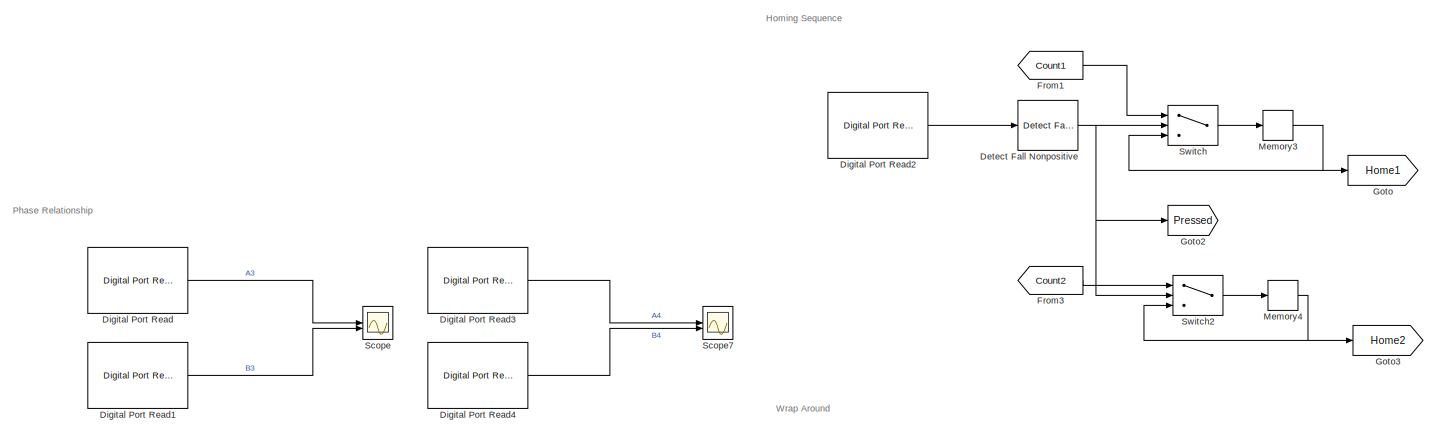
[diagram: root canvas - part 1/2, top left region]
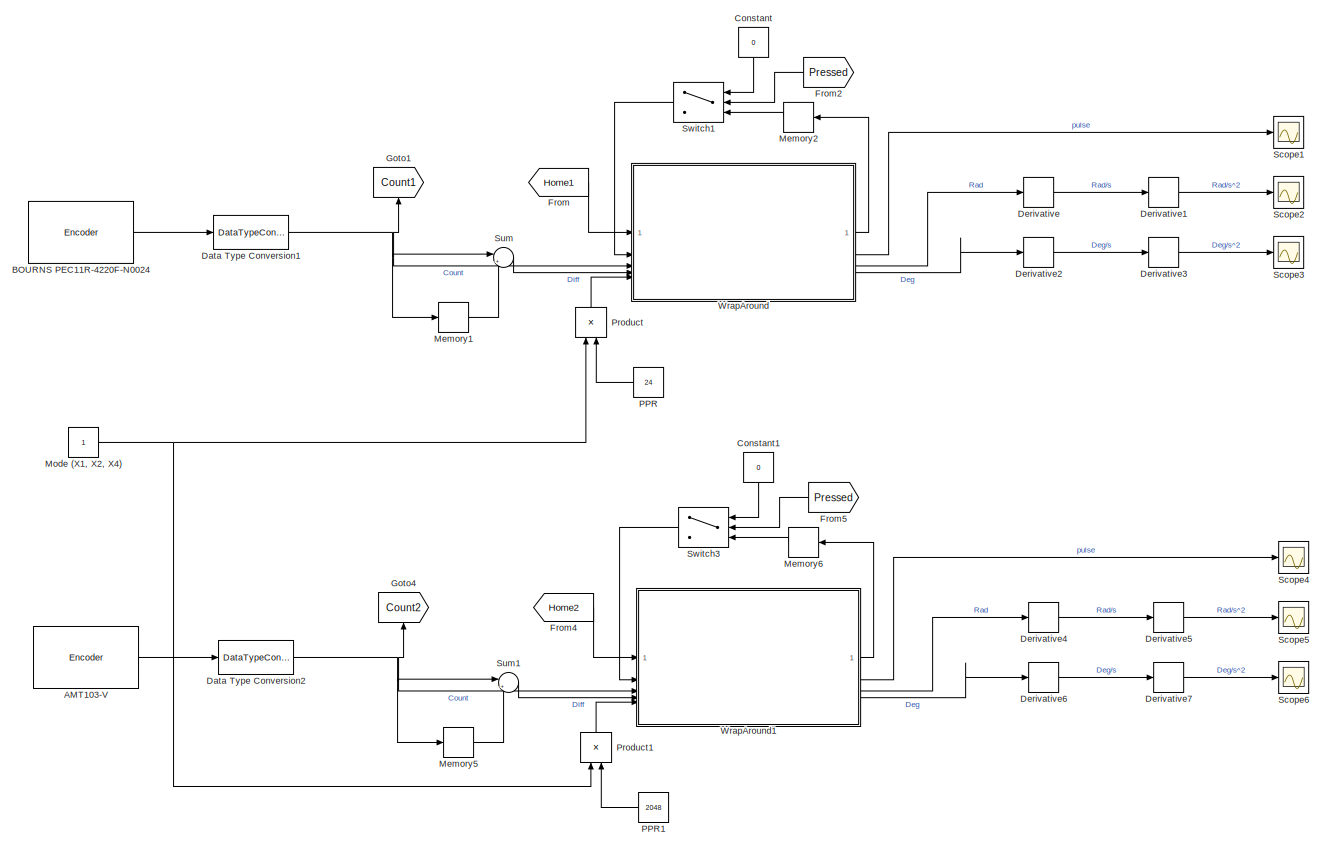
[diagram: root canvas - part 2/2, middle right region]
MODEL slx_5ef16ebb8ba3
KIND model
CONFIG AbsTol = auto
CONFIG EnableMultiTasking = on
CONFIG FixedStep = 0.001
CONFIG MaxStep = auto
CONFIG MinStep = auto
CONFIG RelTol = 1e-3
CONFIG SampleTimeConstraint = Unconstrained
CONFIG SolverName = FixedStepAuto
CONFIG StartTime = 0.0
CONFIG StopTime = inf
BLOCK [Reference] AMT103-V  REF=stm32g4xxblockslib/Encoder
  SourceBlock = stm32g4xxblockslib/Encoder
  SourceType = stm32cube.blocks.EncoderBlockForG4
BLOCK [Reference] BOURNS PEC11R-4220F-N0024  REF=stm32g4xxblockslib/Encoder
  SourceBlock = stm32g4xxblockslib/Encoder
  SourceType = stm32cube.blocks.EncoderBlockForG4
BLOCK [Constant] Constant
  Commented = on
  NameLocation = left
  Value = 0
BLOCK [Constant] Constant1
  Commented = on
  NameLocation = left
  Value = 0
BLOCK [DataTypeConversion] Data Type Conversion1
  Commented = on
  OutDataTypeStr = double
  RndMeth = Floor
  SaturateOnIntegerOverflow = off
BLOCK [DataTypeConversion] Data Type Conversion2
  Commented = on
  OutDataTypeStr = double
  RndMeth = Floor
  SaturateOnIntegerOverflow = off
BLOCK [Derivative] Derivative
  Commented = on
BLOCK [Derivative] Derivative1
  Commented = on
BLOCK [Derivative] Derivative2
  Commented = on
BLOCK [Derivative] Derivative3
  Commented = on
BLOCK [Derivative] Derivative4
  Commented = on
BLOCK [Derivative] Derivative5
  Commented = on
BLOCK [Derivative] Derivative6
  Commented = on
BLOCK [Derivative] Derivative7
  Commented = on
BLOCK [Reference] Detect Fall Nonpositive   REF=simulink/Logic and Bit
Operations/Detect Fall
Nonpositive
  Commented = on
  SourceBlock = simulink/Logic and Bit\nOperations/Detect Fall\nNonpositive
  SourceType = Detect Fall Nonpositive
BLOCK [Reference] Digital Port Read  REF=stm32f4xxblockslib/Digital Port Read
  SourceBlock = stm32f4xxblockslib/Digital Port Read
  SourceType = stm32cube.blocks.DigitalPortRead
BLOCK [Reference] Digital Port Read1  REF=stm32f4xxblockslib/Digital Port Read
  SourceBlock = stm32f4xxblockslib/Digital Port Read
  SourceType = stm32cube.blocks.DigitalPortRead
BLOCK [Reference] Digital Port Read2  REF=stm32f4xxblockslib/Digital Port Read
  Commented = on
  SourceBlock = stm32f4xxblockslib/Digital Port Read
  SourceType = stm32cube.blocks.DigitalPortRead
BLOCK [Reference] Digital Port Read3  REF=stm32f4xxblockslib/Digital Port Read
  SourceBlock = stm32f4xxblockslib/Digital Port Read
  SourceType = stm32cube.blocks.DigitalPortRead
BLOCK [Reference] Digital Port Read4  REF=stm32f4xxblockslib/Digital Port Read
  SourceBlock = stm32f4xxblockslib/Digital Port Read
  SourceType = stm32cube.blocks.DigitalPortRead
BLOCK [From] From
  Commented = on
  GotoTag = Home1
BLOCK [From] From1
  Commented = on
  GotoTag = Count1
BLOCK [From] From2
  Commented = on
  GotoTag = Pressed
  NameLocation = top
BLOCK [From] From3
  Commented = on
  GotoTag = Count2
BLOCK [From] From4
  Commented = on
  GotoTag = Home2
BLOCK [From] From5
  Commented = on
  GotoTag = Pressed
  NameLocation = top
BLOCK [Goto] Goto
  Commented = on
  GotoTag = Home1
BLOCK [Goto] Goto1
  Commented = on
  GotoTag = Count1
  NameLocation = right
BLOCK [Goto] Goto2
  Commented = on
  GotoTag = Pressed
BLOCK [Goto] Goto3
  Commented = on
  GotoTag = Home2
BLOCK [Goto] Goto4
  Commented = on
  GotoTag = Count2
  NameLocation = right
BLOCK [Memory] Memory1
  Commented = on
BLOCK [Memory] Memory2
  Commented = on
  NameLocation = top
BLOCK [Memory] Memory3
  Commented = on
BLOCK [Memory] Memory4
  Commented = on
BLOCK [Memory] Memory5
  Commented = on
BLOCK [Memory] Memory6
  Commented = on
  NameLocation = top
BLOCK [Constant] Mode (X1, X2, X4)
  Commented = on
BLOCK [Constant] PPR
  Commented = on
  NameLocation = top
  Value = 24
BLOCK [Constant] PPR1
  Commented = on
  NameLocation = top
  Value = 2048
BLOCK [Product] Product
  Commented = on
  NameLocation = right
BLOCK [Product] Product1
  Commented = on
  NameLocation = right
BLOCK [Scope] Scope
  Floating = off
  GraphicalSettings = {"GraphicalSettings":{"LegacySettings":true,"Style":{"AxesScalingProperties":{"ScaleAxesLimitsAtStop":false},"Style":{"PlotType":"Auto"}}}}
  NumInputPorts = 2
  WasSavedAsWebScope = on
  WindowPosition = [488.000000,222.000000,560.000000,420.000000,]
BLOCK [Scope] Scope1
  Commented = on
  DataLoggingVariableName = ScopeData1
  Floating = off
  GraphicalSettings = {"GraphicalSettings":{"LegacySettings":true,"Style":{"Style":{"PlotType":"Auto"}}}}
  NumInputPorts = 1
  WasSavedAsWebScope = on
BLOCK [Scope] Scope2
  Commented = on
  DataLoggingVariableName = ScopeData2
  Floating = off
  GraphicalSettings = {"GraphicalSettings":{"LegacySettings":true,"Style":{"Style":{"PlotType":"Auto"}}}}
  NumInputPorts = 1
  WasSavedAsWebScope = on
BLOCK [Scope] Scope3
  Commented = on
  DataLoggingVariableName = ScopeData3
  Floating = off
  GraphicalSettings = {"GraphicalSettings":{"LegacySettings":true,"Style":{"Style":{"PlotType":"Auto"}}}}
  NumInputPorts = 1
  WasSavedAsWebScope = on
BLOCK [Scope] Scope4
  Commented = on
  DataLoggingVariableName = ScopeData4
  Floating = off
  GraphicalSettings = {"GraphicalSettings":{"LegacySettings":true,"Style":{"Style":{"PlotType":"Auto"}}}}
  NumInputPorts = 1
  WasSavedAsWebScope = on
BLOCK [Scope] Scope5
  Commented = on
  DataLoggingVariableName = ScopeData5
  Floating = off
  GraphicalSettings = {"GraphicalSettings":{"LegacySettings":true,"Style":{"Style":{"PlotType":"Auto"}}}}
  NumInputPorts = 1
  WasSavedAsWebScope = on
BLOCK [Scope] Scope6
  Commented = on
  DataLoggingVariableName = ScopeData6
  Floating = off
  GraphicalSettings = {"GraphicalSettings":{"LegacySettings":true,"Style":{"Style":{"PlotType":"Auto"}}}}
  NumInputPorts = 1
  WasSavedAsWebScope = on
BLOCK [Scope] Scope7
  DataLoggingVariableName = ScopeData7
  Floating = off
  GraphicalSettings = {"GraphicalSettings":{"LegacySettings":true,"Style":{"AxesScalingProperties":{"ScaleAxesLimitsAtStop":false},"Style":{"PlotType":"Auto"}}}}
  NumInputPorts = 2
  WasSavedAsWebScope = on
  WindowPosition = [488.000000,222.000000,560.000000,420.000000,]
BLOCK [Sum] Sum
  Commented = on
  Inputs = |+-
BLOCK [Sum] Sum1
  Commented = on
  Inputs = |+-
BLOCK [Switch] Switch
  Commented = on
  Criteria = u2 > Threshold
  InputSameDT = off
  SaturateOnIntegerOverflow = off
BLOCK [Switch] Switch1
  Commented = on
  Criteria = u2 > Threshold
  InputSameDT = off
  NameLocation = top
  SaturateOnIntegerOverflow = off
BLOCK [Switch] Switch2
  Commented = on
  Criteria = u2 > Threshold
  InputSameDT = off
  SaturateOnIntegerOverflow = off
BLOCK [Switch] Switch3
  Commented = on
  Criteria = u2 > Threshold
  InputSameDT = off
  NameLocation = top
  SaturateOnIntegerOverflow = off
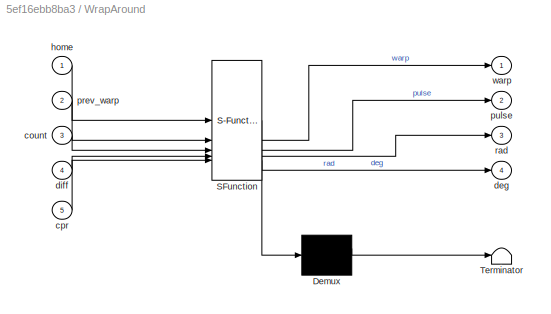
BLOCK [SubSystem] WrapAround
  Commented = on
  ErrorFcn = Stateflow.Translate.translate
  PermitHierarchicalResolution = ExplicitOnly
  SFBlockType = MATLAB Function
  TreatAsAtomicUnit = on
BLOCK [Demux] WrapAround/ Demux 
  Outputs = 1
BLOCK [S-Function] WrapAround/ SFunction 
  EnableBusSupport = off
  FunctionName = sf_sfun
  PortCounts = [5 5]
  SFcnIsStateOwnerBlock = off
  SFunctionDeploymentMode = off
  Tag = Stateflow S-Function 2
BLOCK [Terminator] WrapAround/ Terminator 
BLOCK [Inport] WrapAround/count
  Port = 3
BLOCK [Inport] WrapAround/cpr
  Port = 5
BLOCK [Outport] WrapAround/deg
  Port = 4
BLOCK [Inport] WrapAround/diff
  Port = 4
BLOCK [Inport] WrapAround/home
BLOCK [Inport] WrapAround/prev_warp
  Port = 2
BLOCK [Outport] WrapAround/pulse
  Port = 2
BLOCK [Outport] WrapAround/rad
  Port = 3
BLOCK [Outport] WrapAround/warp
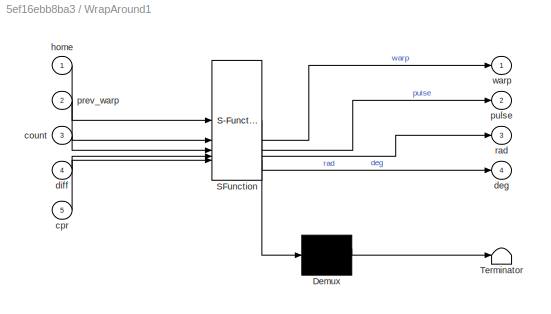
BLOCK [SubSystem] WrapAround1
  Commented = on
  ErrorFcn = Stateflow.Translate.translate
  PermitHierarchicalResolution = ExplicitOnly
  SFBlockType = MATLAB Function
  TreatAsAtomicUnit = on
BLOCK [Demux] WrapAround1/ Demux 
  Outputs = 1
BLOCK [S-Function] WrapAround1/ SFunction 
  EnableBusSupport = off
  FunctionName = sf_sfun
  PortCounts = [5 5]
  SFcnIsStateOwnerBlock = off
  SFunctionDeploymentMode = off
  Tag = Stateflow S-Function 1
BLOCK [Terminator] WrapAround1/ Terminator 
BLOCK [Inport] WrapAround1/count
  Port = 3
BLOCK [Inport] WrapAround1/cpr
  Port = 5
BLOCK [Outport] WrapAround1/deg
  Port = 4
BLOCK [Inport] WrapAround1/diff
  Port = 4
BLOCK [Inport] WrapAround1/home
BLOCK [Inport] WrapAround1/prev_warp
  Port = 2
BLOCK [Outport] WrapAround1/pulse
  Port = 2
BLOCK [Outport] WrapAround1/rad
  Port = 3
BLOCK [Outport] WrapAround1/warp
ANNOTATION (root): Homing Sequence
ANNOTATION (root): Phase Relationship
ANNOTATION (root): Wrap Around
LINE AMT103-V:1 -> Data Type Conversion2:1
LINE BOURNS PEC11R-4220F-N0024:1 -> Data Type Conversion1:1
LINE Constant1:1 -> Switch3:1
LINE Constant:1 -> Switch1:1
NET Data Type Conversion1:1 -> Goto1:1, Memory1:1, Sum:1, WrapAround:3
NET Data Type Conversion2:1 -> Goto4:1, Memory5:1, Sum1:1, WrapAround1:3
LINE Derivative1:1 -> Scope2:1
LINE Derivative2:1 -> Derivative3:1
LINE Derivative3:1 -> Scope3:1
LINE Derivative4:1 -> Derivative5:1
LINE Derivative5:1 -> Scope5:1
LINE Derivative6:1 -> Derivative7:1
LINE Derivative7:1 -> Scope6:1
LINE Derivative:1 -> Derivative1:1
NET Detect Fall Nonpositive :1 -> Goto2:1, Switch2:2, Switch:2
LINE Digital Port Read1:1 -> Scope:2
LINE Digital Port Read2:1 -> Detect Fall Nonpositive :1
LINE Digital Port Read3:1 -> Scope7:1
LINE Digital Port Read4:1 -> Scope7:2
LINE Digital Port Read:1 -> Scope:1
LINE From1:1 -> Switch:1
LINE From2:1 -> Switch1:2
LINE From3:1 -> Switch2:1
LINE From4:1 -> WrapAround1:1
LINE From5:1 -> Switch3:2
LINE From:1 -> WrapAround:1
LINE Memory1:1 -> Sum:2
LINE Memory2:1 -> Switch1:3
NET Memory3:1 -> Goto:1, Switch:3
NET Memory4:1 -> Goto3:1, Switch2:3
LINE Memory5:1 -> Sum1:2
LINE Memory6:1 -> Switch3:3
NET Mode (X1, X2, X4):1 -> Product1:1, Product:1
LINE PPR1:1 -> Product1:2
LINE PPR:1 -> Product:2
LINE Product1:1 -> WrapAround1:5
LINE Product:1 -> WrapAround:5
LINE Sum1:1 -> WrapAround1:4
LINE Sum:1 -> WrapAround:4
LINE Switch1:1 -> WrapAround:2
LINE Switch2:1 -> Memory4:1
LINE Switch3:1 -> WrapAround1:2
LINE Switch:1 -> Memory3:1
LINE WrapAround1:1 -> Memory6:1
LINE WrapAround1:2 -> Scope4:1
LINE WrapAround1:3 -> Derivative4:1
LINE WrapAround1:4 -> Derivative6:1
LINE WrapAround:1 -> Memory2:1
LINE WrapAround:2 -> Scope1:1
LINE WrapAround:3 -> Derivative:1
LINE WrapAround:4 -> Derivative2:1
note: NET lines group one-source signal fan-out (src -> all destinations, sorted); 1:1 wires keep LINE
CHART WrapAround1 states=1 transitions=1
  STATE_LABEL 'eML_blk_kernel()'
  STATE_LABEL 'SCRIPT:\nfunction [warp, pulse, rad, deg]= fcn(home, prev_warp, count, diff, cpr)\n\nif diff <= -cpr * 0.5\n    warp = prev_warp + 1;\n    pulse = count + (warp * cpr);\nelseif diff >= cpr * 0.5\n    warp = prev_warp - 1;\n    pulse = count - (warp * cpr);\nelse\n    warp = prev_warp;\n    pulse = count + (warp * cpr);\nend\n\npulse = pulse - home;\nrad = (pulse * 2 * pi) / cpr;\ndeg = rad2deg(rad);'
CHART WrapAround states=1 transitions=1
  STATE_LABEL 'eML_blk_kernel()'
  STATE_LABEL 'SCRIPT:\nfunction [warp, pulse, rad, deg]= fcn(home, prev_warp, count, diff, cpr)\n\nif diff <= -cpr * 0.5\n    warp = prev_warp + 1;\n    pulse = count + (warp * cpr);\nelseif diff >= cpr * 0.5\n    warp = prev_warp - 1;\n    pulse = count - (warp * cpr);\nelse\n    warp = prev_warp;\n    pulse = count + (warp * cpr);\nend\n\npulse = pulse - home;\nrad = (pulse * 2 * pi) / cpr;\ndeg = rad2deg(rad);\n'
CHART  states=0 transitions=0
CHART  states=0 transitions=0
